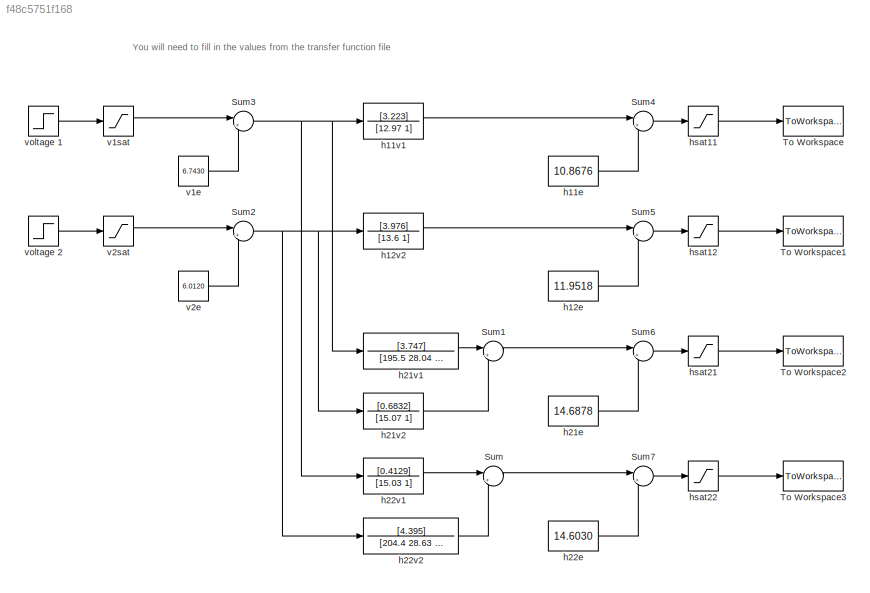
MODEL slx_f48c5751f168
KIND model
CONFIG AbsTol = auto
CONFIG FixedStep = auto
CONFIG MaxStep = auto
CONFIG MinStep = auto
CONFIG RelTol = 1e-3
CONFIG SampleTimeConstraint = Unconstrained
CONFIG Solver = VariableStepAuto
CONFIG SolverMode = Auto
CONFIG SolverName = VariableStepAuto
CONFIG StartTime = 0.0
CONFIG StopTime = 100
BLOCK [Sum] Sum
  IconShape = round
  InputSameDT = off
  Inputs = |++
  OutDataTypeStr = Inherit: Inherit via internal rule
  Ports = [2, 1]
  SaturateOnIntegerOverflow = off
BLOCK [Sum] Sum1
  IconShape = round
  InputSameDT = off
  Inputs = |++
  OutDataTypeStr = Inherit: Inherit via internal rule
  Ports = [2, 1]
  SaturateOnIntegerOverflow = off
BLOCK [Sum] Sum2
  IconShape = round
  InputSameDT = off
  Inputs = |+-
  OutDataTypeStr = Inherit: Inherit via internal rule
  Ports = [2, 1]
  SaturateOnIntegerOverflow = off
BLOCK [Sum] Sum3
  IconShape = round
  InputSameDT = off
  Inputs = |+-
  OutDataTypeStr = Inherit: Inherit via internal rule
  Ports = [2, 1]
  SaturateOnIntegerOverflow = off
BLOCK [Sum] Sum4
  IconShape = round
  InputSameDT = off
  Inputs = |++
  OutDataTypeStr = Inherit: Inherit via internal rule
  Ports = [2, 1]
  SaturateOnIntegerOverflow = off
BLOCK [Sum] Sum5
  IconShape = round
  InputSameDT = off
  Inputs = |++
  OutDataTypeStr = Inherit: Inherit via internal rule
  Ports = [2, 1]
  SaturateOnIntegerOverflow = off
BLOCK [Sum] Sum6
  IconShape = round
  InputSameDT = off
  Inputs = |++
  OutDataTypeStr = Inherit: Inherit via internal rule
  Ports = [2, 1]
  SaturateOnIntegerOverflow = off
BLOCK [Sum] Sum7
  IconShape = round
  InputSameDT = off
  Inputs = |++
  OutDataTypeStr = Inherit: Inherit via internal rule
  Ports = [2, 1]
  SaturateOnIntegerOverflow = off
BLOCK [ToWorkspace] To Workspace
  FixptAsFi = on
  MaxDataPoints = inf
  Ports = [1]
  SampleTime = -1
  Save2DSignal = 3-D array (concatenate along third dimension)
  SaveFormat = Timeseries
  VariableName = tank11
BLOCK [ToWorkspace] To Workspace1
  FixptAsFi = on
  MaxDataPoints = inf
  Ports = [1]
  SampleTime = -1
  Save2DSignal = 3-D array (concatenate along third dimension)
  SaveFormat = Timeseries
  VariableName = tank12
BLOCK [ToWorkspace] To Workspace2
  FixptAsFi = on
  MaxDataPoints = inf
  Ports = [1]
  SampleTime = -1
  Save2DSignal = 3-D array (concatenate along third dimension)
  SaveFormat = Timeseries
  VariableName = tank21
BLOCK [ToWorkspace] To Workspace3
  FixptAsFi = on
  MaxDataPoints = inf
  Ports = [1]
  SampleTime = -1
  Save2DSignal = 3-D array (concatenate along third dimension)
  SaveFormat = Timeseries
  VariableName = tank22
BLOCK [Constant] h11e
  Value = 10.8676
BLOCK [TransferFcn] h11v1
  Denominator = [12.97 1]
  Numerator = [3.223]
BLOCK [Constant] h12e
  Value = 11.9518
BLOCK [TransferFcn] h12v2
  Denominator = [13.6 1]
  Numerator = [3.976]
BLOCK [Constant] h21e
  Value = 14.6878
BLOCK [TransferFcn] h21v1
  Denominator = [195.5 28.04 1]
  Numerator = [3.747]
BLOCK [TransferFcn] h21v2
  Denominator = [15.07 1]
  Numerator = [0.6832]
BLOCK [Constant] h22e
  Value = 14.6030
BLOCK [TransferFcn] h22v1
  Denominator = [15.03 1]
  Numerator = [0.4129]
BLOCK [TransferFcn] h22v2
  Denominator = [204.4 28.63 1]
  Numerator = [4.395]
BLOCK [Saturate] hsat11
  InputPortMap = u0
  LowerLimit = 0
  Ports = [1, 1]
  UpperLimit = 30
BLOCK [Saturate] hsat12
  InputPortMap = u0
  LowerLimit = 0
  Ports = [1, 1]
  UpperLimit = 30
BLOCK [Saturate] hsat21
  InputPortMap = u0
  LowerLimit = 0
  Ports = [1, 1]
  UpperLimit = 30
BLOCK [Saturate] hsat22
  InputPortMap = u0
  LowerLimit = 0
  Ports = [1, 1]
  UpperLimit = 30
BLOCK [Constant] v1e
  Value = 6.7430
BLOCK [Saturate] v1sat
  InputPortMap = u0
  LowerLimit = 0
  Ports = [1, 1]
  UpperLimit = 12
BLOCK [Constant] v2e
  Value = 6.0120
BLOCK [Saturate] v2sat
  InputPortMap = u0
  LowerLimit = 0
  Ports = [1, 1]
  UpperLimit = 12
BLOCK [Step] voltage 1
  After = 6.7430
  SampleTime = 0
  Time = 30
BLOCK [Step] voltage 2
  After = 6.0120
  SampleTime = 0
  Time = 30
ANNOTATION (root): You will need to fill in the values from the transfer function file
LINE Sum1:1 -> Sum6:1
NET Sum2:1 -> h12v2:1, h21v2:1, h22v2:1
NET Sum3:1 -> h11v1:1, h21v1:1, h22v1:1
LINE Sum4:1 -> hsat11:1
LINE Sum5:1 -> hsat12:1
LINE Sum6:1 -> hsat21:1
LINE Sum7:1 -> hsat22:1
LINE Sum:1 -> Sum7:1
LINE h11e:1 -> Sum4:2
LINE h11v1:1 -> Sum4:1
LINE h12e:1 -> Sum5:2
LINE h12v2:1 -> Sum5:1
LINE h21e:1 -> Sum6:2
LINE h21v1:1 -> Sum1:1
LINE h21v2:1 -> Sum1:2
LINE h22e:1 -> Sum7:2
LINE h22v1:1 -> Sum:1
LINE h22v2:1 -> Sum:2
LINE hsat11:1 -> To Workspace:1
LINE hsat12:1 -> To Workspace1:1
LINE hsat21:1 -> To Workspace2:1
LINE hsat22:1 -> To Workspace3:1
LINE v1e:1 -> Sum3:2
LINE v1sat:1 -> Sum3:1
LINE v2e:1 -> Sum2:2
LINE v2sat:1 -> Sum2:1
LINE voltage 1:1 -> v1sat:1
LINE voltage 2:1 -> v2sat:1
note: NET lines group one-source signal fan-out (src -> all destinations, sorted); 1:1 wires keep LINE
